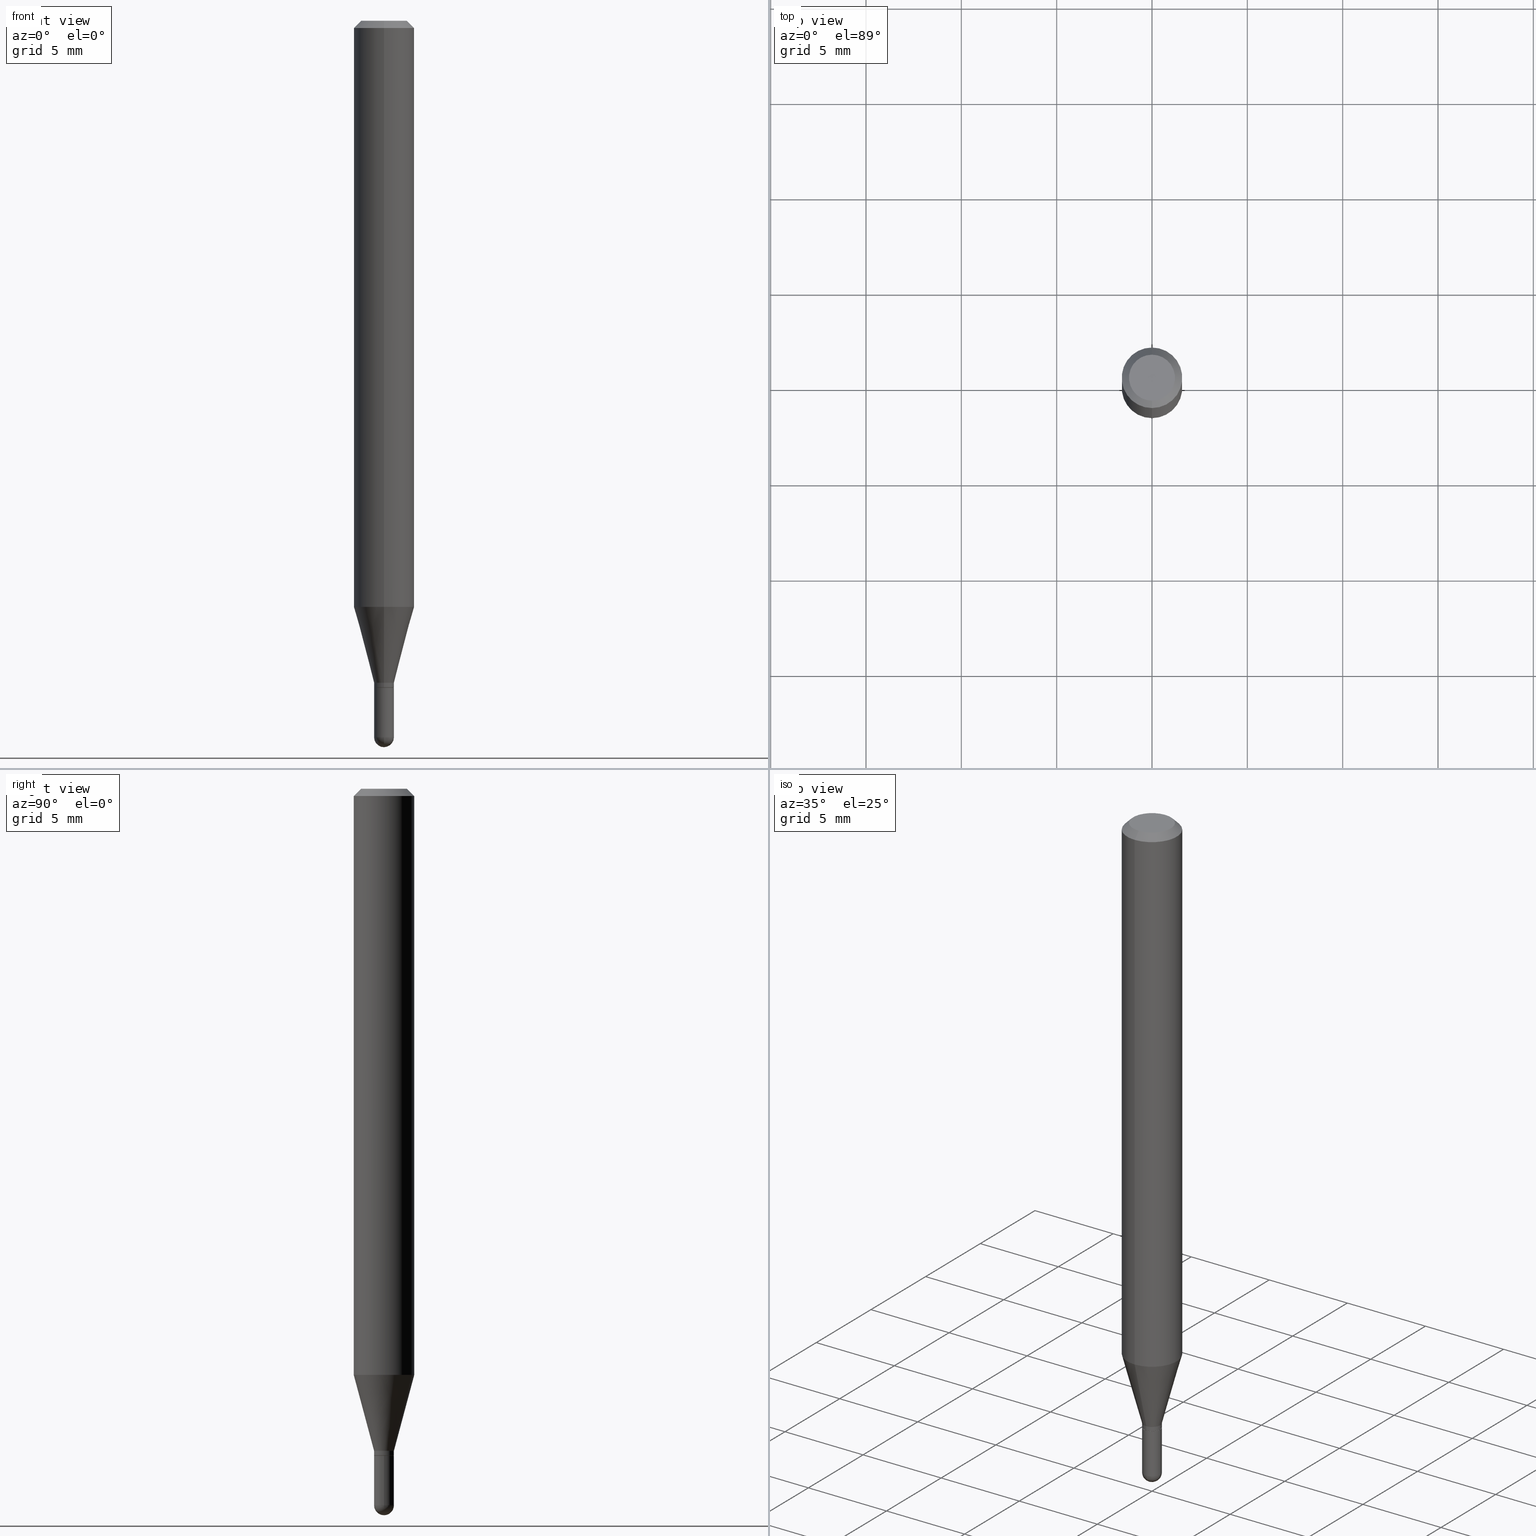
[diagram: canonical four-view strip — front | top / right | iso, engineering-drawing reading convention]
A machine part, canonical four-view strip (front | top / right | iso — engineering-drawing reading convention). The complete STEP part file that produces these views, byte-faithful:
ISO-10303-21;
HEADER;
FILE_DESCRIPTION (( 'STEP AP203' ),
    '1' );
FILE_NAME ('00847.STEP',
    '2024-03-07T18:28:49',
    ( '' ),
    ( '' ),
    'SwSTEP 2.0',
    'SolidWorks 2023',
    '' );
FILE_SCHEMA (( 'CONFIG_CONTROL_DESIGN' ));
ENDSEC;

DATA;
#1 = DIRECTION ( 'NONE',  ( -2.445286183513924545E-29, 3.491742864902558020E-15, 1.000000000000000000 ) ) ;
#2 = DIRECTION ( 'NONE',  ( 2.445286183513924545E-29, -3.491742864902558020E-15, -1.000000000000000000 ) ) ;
#3 = PERSON_AND_ORGANIZATION_ROLE ( 'design_owner' ) ;
#4 = MECHANICAL_CONTEXT ( 'NONE', #492, 'mechanical' ) ;
#5 = AXIS2_PLACEMENT_3D ( 'NONE', #204, #49, #90 ) ;
#6 = ADVANCED_FACE ( 'NONE', ( #205 ), #20, .T. ) ;
#7 = APPLICATION_PROTOCOL_DEFINITION ( 'international standard', 'config_control_design', 1994, #485 ) ;
#8 = LINE ( 'NONE', #9, #242 ) ;
#9 = CARTESIAN_POINT ( 'NONE',  ( -4.364351673553916201E-16, -0.06250000000000000000, 2.182339290564098763E-16 ) ) ;
#10 = UNCERTAINTY_MEASURE_WITH_UNIT (LENGTH_MEASURE( 1.000000000000000082E-05 ), #201, 'distance_accuracy_value', 'NONE');
#11 = EDGE_CURVE ( 'NONE', #472, #428, #304, .T. ) ;
#12 = CONICAL_SURFACE ( 'NONE', #153, 0.02000000000000000042, 0.7853981633974739252 ) ;
#13 = AXIS2_PLACEMENT_3D ( 'NONE', #247, #83, #241 ) ;
#14 = ORIENTED_EDGE ( 'NONE', *, *, #502, .T. ) ;
#15 = CARTESIAN_POINT ( 'NONE',  ( 4.440892098500920012E-16, 0.06249999999999574646, -1.210253866082108276 ) ) ;
#16 = APPROVAL ( #222, 'UNSPECIFIED' ) ;
#17 = EDGE_LOOP ( 'NONE', ( #93, #417, #248, #25, #464 ) ) ;
#18 = PRODUCT ( '00847', '00847', '', ( #4 ) ) ;
#19 = VERTEX_POINT ( 'NONE', #252 ) ;
#20 = CONICAL_SURFACE ( 'NONE', #258, 0.02049999999999993494, 0.2617993877991507401 ) ;
#21 = EDGE_CURVE ( 'NONE', #67, #495, #409, .T. ) ;
#22 = AXIS2_PLACEMENT_3D ( 'NONE', #178, #349, #32 ) ;
#23 = CARTESIAN_POINT ( 'NONE',  ( -4.287811248607203282E-16, -0.06250000000000005551, -0.01499999999999979128 ) ) ;
#24 = EDGE_CURVE ( 'NONE', #343, #413, #56, .T. ) ;
#25 = ORIENTED_EDGE ( 'NONE', *, *, #21, .F. ) ;
#26 = DIRECTION ( 'NONE',  ( -4.851104656540964275E-15, -0.7071067811865500152, -0.7071067811865450192 ) ) ;
#27 = ORIENTED_EDGE ( 'NONE', *, *, #399, .F. ) ;
#28 = LINE ( 'NONE', #182, #493 ) ;
#29 = EDGE_CURVE ( 'NONE', #19, #289, #8, .T. ) ;
#30 = ORIENTED_EDGE ( 'NONE', *, *, #385, .F. ) ;
#31 = CARTESIAN_POINT ( 'NONE',  ( 1.431507348926021194E-16, 0.02049999999999519568, -1.377000000000000002 ) ) ;
#32 = DIRECTION ( 'NONE',  ( -6.982962677686266711E-15, -1.000000000000000000, 3.491742864902558415E-15 ) ) ;
#33 = CARTESIAN_POINT ( 'NONE',  ( 0.000000000000000000, 0.000000000000000000, 0.000000000000000000 ) ) ;
#34 = EDGE_LOOP ( 'NONE', ( #71, #173, #269, #132 ) ) ;
#35 = APPROVAL_ROLE ( '' ) ;
#36 = DIRECTION ( 'NONE',  ( -2.445286183513924545E-29, 3.491742864902558020E-15, 1.000000000000000000 ) ) ;
#37 = VECTOR ( 'NONE', #494, 39.37007874015748143 ) ;
#38 = AXIS2_PLACEMENT_3D ( 'NONE', #75, #400, #39 ) ;
#39 = DIRECTION ( 'NONE',  ( -6.982962677686266711E-15, -1.000000000000000000, 3.491742864902558415E-15 ) ) ;
#40 = ADVANCED_FACE ( 'NONE', ( #461 ), #389, .T. ) ;
#41 = COORDINATED_UNIVERSAL_TIME_OFFSET ( 5, 0, .BEHIND. ) ;
#42 = AXIS2_PLACEMENT_3D ( 'NONE', #324, #475, #79 ) ;
#43 = CC_DESIGN_SECURITY_CLASSIFICATION ( #319, ( #251 ) ) ;
#44 = DIRECTION ( 'NONE',  ( -6.982962677686265922E-15, -1.000000000000000000, 4.370956789862821150E-15 ) ) ;
#45 = EDGE_CURVE ( 'NONE', #331, #289, #215, .T. ) ;
#46 = ORIENTED_EDGE ( 'NONE', *, *, #334, .F. ) ;
#47 =( NAMED_UNIT ( * ) SI_UNIT ( $, .STERADIAN. ) SOLID_ANGLE_UNIT ( ) );
#48 = EDGE_LOOP ( 'NONE', ( #266, #433 ) ) ;
#49 = DIRECTION ( 'NONE',  ( -2.445286183513924545E-29, 3.491742864902558020E-15, 1.000000000000000000 ) ) ;
#50 = CC_DESIGN_PERSON_AND_ORGANIZATION_ASSIGNMENT ( #113, #149, ( #251 ) ) ;
#51 = DIRECTION ( 'NONE',  ( 6.982962677686265922E-15, 1.000000000000000000, -3.483106191921935554E-15 ) ) ;
#52 = CONICAL_SURFACE ( 'NONE', #511, 0.06250000000000000000, 0.7853981633974483900 ) ;
#53 = CC_DESIGN_APPROVAL ( #184, ( #408 ) ) ;
#54 = ORIENTED_EDGE ( 'NONE', *, *, #29, .F. ) ;
#55 = CARTESIAN_POINT ( 'NONE',  ( 0.000000000000000000, 0.000000000000000000, 0.000000000000000000 ) ) ;
#56 = LINE ( 'NONE', #207, #151 ) ;
#57 = EDGE_CURVE ( 'NONE', #426, #137, #230, .T. ) ;
#58 = DIRECTION ( 'NONE',  ( -2.445286183513924545E-29, 3.491742864902558020E-15, 1.000000000000000000 ) ) ;
#59 = ORIENTED_EDGE ( 'NONE', *, *, #297, .F. ) ;
#60 = CIRCLE ( 'NONE', #22, 0.04749999999999999362 ) ;
#61 = DIRECTION ( 'NONE',  ( 1.000000000000000000, -6.982962677686264344E-15, 0.000000000000000000 ) ) ;
#62 = APPROVAL_PERSON_ORGANIZATION ( #65, #16, #35 ) ;
#63 = DIRECTION ( 'NONE',  ( -2.445286183513924545E-29, 3.491742864902558020E-15, 1.000000000000000000 ) ) ;
#64 = ADVANCED_FACE ( 'NONE', ( #221 ), #102, .T. ) ;
#65 = PERSON_AND_ORGANIZATION ( #337, #212 ) ;
#66 = CARTESIAN_POINT ( 'NONE',  ( -1.431507348925679518E-16, -0.02049999999999992800, 7.158072873050219437E-17 ) ) ;
#67 = VERTEX_POINT ( 'NONE', #508 ) ;
#68 = CARTESIAN_POINT ( 'NONE',  ( 1.421085471520536653E-16, 0.01999999999999519523, -1.377000000000000002 ) ) ;
#69 = DIRECTION ( 'NONE',  ( -6.982962677686265922E-15, -1.000000000000000000, 3.491742864902558020E-15 ) ) ;
#70 = CIRCLE ( 'NONE', #13, 0.02050000000000000086 ) ;
#71 = ORIENTED_EDGE ( 'NONE', *, *, #183, .F. ) ;
#72 = DATE_AND_TIME ( #186, #181 ) ;
#73 = ORIENTED_EDGE ( 'NONE', *, *, #357, .F. ) ;
#74 = FACE_OUTER_BOUND ( 'NONE', #34, .T. ) ;
#75 = CARTESIAN_POINT ( 'NONE',  ( 2.163564054158609537E-46, -3.089458158231546394E-32, -8.847897104009008911E-18 ) ) ;
#76 = AXIS2_PLACEMENT_3D ( 'NONE', #468, #299, #111 ) ;
#77 = APPROVAL_PERSON_ORGANIZATION ( #199, #184, #122 ) ;
#78 = ADVANCED_FACE ( 'NONE', ( #271 ), #380, .F. ) ;
#79 = DIRECTION ( 'NONE',  ( -6.982962677686265922E-15, -1.000000000000000000, 0.000000000000000000 ) ) ;
#80 = APPROVAL_DATE_TIME ( #328, #184 ) ;
#81 = PERSON_AND_ORGANIZATION ( #337, #212 ) ;
#82 = DIRECTION ( 'NONE',  ( -6.982962677686265133E-15, -1.000000000000000000, 0.000000000000000000 ) ) ;
#83 = DIRECTION ( 'NONE',  ( -2.445468806185136597E-29, 3.491481338843145583E-15, 1.000000000000000000 ) ) ;
#84 = VECTOR ( 'NONE', #427, 39.37007874015748143 ) ;
#85 = CARTESIAN_POINT ( 'NONE',  ( 3.616318007858092069E-29, -5.168157166756686411E-15, -1.479500000000000259 ) ) ;
#86 = ORIENTED_EDGE ( 'NONE', *, *, #98, .F. ) ;
#87 = ORIENTED_EDGE ( 'NONE', *, *, #11, .T. ) ;
#88 = DIRECTION ( 'NONE',  ( -2.445468806185136597E-29, 3.491481338843145583E-15, 1.000000000000000000 ) ) ;
#89 = ORIENTED_EDGE ( 'NONE', *, *, #91, .F. ) ;
#90 = DIRECTION ( 'NONE',  ( -6.982962677686265922E-15, -1.000000000000000000, 3.491742864902558020E-15 ) ) ;
#91 = EDGE_CURVE ( 'NONE', #372, #289, #422, .T. ) ;
#92 = CC_DESIGN_DATE_AND_TIME_ASSIGNMENT ( #282, #440, ( #408 ) ) ;
#93 = ORIENTED_EDGE ( 'NONE', *, *, #339, .T. ) ;
#94 = DIRECTION ( 'NONE',  ( 1.000000000000000000, -6.982962677686264344E-15, 0.000000000000000000 ) ) ;
#95 = DIRECTION ( 'NONE',  ( -2.445286183513924265E-29, 3.491742864902558020E-15, 1.000000000000000000 ) ) ;
#96 = EDGE_LOOP ( 'NONE', ( #285, #254 ) ) ;
#97 = DIRECTION ( 'NONE',  ( 1.000000000000000000, -6.982962677686261977E-15, 0.000000000000000000 ) ) ;
#98 = EDGE_CURVE ( 'NONE', #187, #137, #498, .T. ) ;
#99 = AXIS2_PLACEMENT_3D ( 'NONE', #267, #216, #69 ) ;
#100 = VERTEX_POINT ( 'NONE', #504 ) ;
#101 = CIRCLE ( 'NONE', #462, 0.02049999999999992453 ) ;
#102 = CYLINDRICAL_SURFACE ( 'NONE', #469, 0.02049999999999992800 ) ;
#103 = DIRECTION ( 'NONE',  ( 6.982962677686265922E-15, 1.000000000000000000, 0.000000000000000000 ) ) ;
#104 = ORIENTED_EDGE ( 'NONE', *, *, #167, .F. ) ;
#105 = CARTESIAN_POINT ( 'NONE',  ( 3.618071098750910124E-29, -5.165646640818434953E-15, -1.479500000000000259 ) ) ;
#106 = DATE_AND_TIME ( #395, #406 ) ;
#107 = ORIENTED_EDGE ( 'NONE', *, *, #29, .T. ) ;
#108 = CARTESIAN_POINT ( 'NONE',  ( 2.959417057274890367E-29, -4.225895301612936912E-15, -1.210253866082107832 ) ) ;
#109 = ORIENTED_EDGE ( 'NONE', *, *, #200, .T. ) ;
#110 = CLOSED_SHELL ( 'NONE', ( #435, #377, #280, #40, #6, #346, #442, #392, #244, #265, #227, #64 ) ) ;
#111 = DIRECTION ( 'NONE',  ( 1.000000000000000000, -6.982962677686264344E-15, 0.000000000000000000 ) ) ;
#112 = AXIS2_PLACEMENT_3D ( 'NONE', #403, #2, #477 ) ;
#113 = PERSON_AND_ORGANIZATION ( #337, #212 ) ;
#114 = EDGE_CURVE ( 'NONE', #426, #19, #218, .T. ) ;
#115 = CLOSED_SHELL ( 'NONE', ( #450, #288, #78, #237, #256 ) ) ;
#116 = ORIENTED_EDGE ( 'NONE', *, *, #45, .T. ) ;
#117 = DIRECTION ( 'NONE',  ( -6.982962677686265922E-15, -1.000000000000000000, 0.000000000000000000 ) ) ;
#118 = PERSON_AND_ORGANIZATION ( #337, #212 ) ;
#119 = CARTESIAN_POINT ( 'NONE',  ( 3.616318007858092069E-29, -5.168157166756686411E-15, -1.479500000000000259 ) ) ;
#120 = LINE ( 'NONE', #480, #501 ) ;
#121 = AXIS2_PLACEMENT_3D ( 'NONE', #465, #264, #348 ) ;
#122 = APPROVAL_ROLE ( '' ) ;
#123 = DIRECTION ( 'NONE',  ( 2.445286183513924545E-29, -3.491742864902558020E-15, -1.000000000000000000 ) ) ;
#124 = PLANE ( 'NONE',  #405 ) ;
#125 = CARTESIAN_POINT ( 'NONE',  ( -0.02050000000000000086, -4.841046961371903070E-15, -1.377000000000000002 ) ) ;
#126 = DIRECTION ( 'NONE',  ( -2.445286183513924545E-29, 3.491742864902558020E-15, 1.000000000000000000 ) ) ;
#127 = DIRECTION ( 'NONE',  ( 1.000000000000000000, -6.982962677686267499E-15, 4.876176775795935232E-29 ) ) ;
#128 = VERTEX_POINT ( 'NONE', #310 ) ;
#129 = CIRCLE ( 'NONE', #270, 0.06250000000000000000 ) ;
#130 = ORIENTED_EDGE ( 'NONE', *, *, #189, .F. ) ;
#131 = CARTESIAN_POINT ( 'NONE',  ( -1.431507348925345485E-16, -0.02050000000000470543, -1.367000000000000215 ) ) ;
#132 = ORIENTED_EDGE ( 'NONE', *, *, #306, .F. ) ;
#133 = EDGE_CURVE ( 'NONE', #203, #128, #443, .T. ) ;
#134 = ORIENTED_EDGE ( 'NONE', *, *, #183, .T. ) ;
#135 = ORIENTED_EDGE ( 'NONE', *, *, #189, .T. ) ;
#136 = DIRECTION ( 'NONE',  ( -4.937700262164674260E-15, -0.7071067811865632269, 0.7071067811865319186 ) ) ;
#137 = VERTEX_POINT ( 'NONE', #384 ) ;
#138 = CARTESIAN_POINT ( 'NONE',  ( 1.456612608308531340E-16, 0.02049999999999504996, -1.376500000000000279 ) ) ;
#139 = FACE_OUTER_BOUND ( 'NONE', #486, .T. ) ;
#140 = EDGE_CURVE ( 'NONE', #343, #428, #398, .T. ) ;
#141 = DIRECTION ( 'NONE',  ( -2.445286183513924825E-29, 3.491742864902558020E-15, 1.000000000000000000 ) ) ;
#142 = DIRECTION ( 'NONE',  ( -6.982962677686265133E-15, -1.000000000000000000, 0.000000000000000000 ) ) ;
#143 = CONICAL_SURFACE ( 'NONE', #112, 0.06250000000000000000, 0.7853981633974483900 ) ;
#144 = DIRECTION ( 'NONE',  ( -2.445286183513924825E-29, 3.491742864902558020E-15, 1.000000000000000000 ) ) ;
#145 = DIRECTION ( 'NONE',  ( -2.445286183513924545E-29, 3.491742864902558020E-15, 1.000000000000000000 ) ) ;
#146 = EDGE_LOOP ( 'NONE', ( #30, #509, #467, #104 ) ) ;
#147 = CARTESIAN_POINT ( 'NONE',  ( 1.456612608308200019E-16, 0.02049999999999992800, -7.158072873050219437E-17 ) ) ;
#148 = EDGE_CURVE ( 'NONE', #446, #331, #28, .T. ) ;
#149 = PERSON_AND_ORGANIZATION_ROLE ( 'creator' ) ;
#150 = ORIENTED_EDGE ( 'NONE', *, *, #11, .F. ) ;
#151 = VECTOR ( 'NONE', #368, 39.37007874015748143 ) ;
#152 = FACE_OUTER_BOUND ( 'NONE', #274, .T. ) ;
#153 = AXIS2_PLACEMENT_3D ( 'NONE', #474, #1, #117 ) ;
#154 = AXIS2_PLACEMENT_3D ( 'NONE', #255, #272, #329 ) ;
#155 = CARTESIAN_POINT ( 'NONE',  ( 3.365936431606917965E-29, -4.806384053538371570E-15, -1.376500000000000279 ) ) ;
#156 = CARTESIAN_POINT ( 'NONE',  ( 3.342706212863535616E-29, -4.773212496321797638E-15, -1.367000000000000215 ) ) ;
#157 = EDGE_CURVE ( 'NONE', #289, #331, #305, .T. ) ;
#158 = DIRECTION ( 'NONE',  ( 0.000000000000000000, 0.000000000000000000, 1.000000000000000000 ) ) ;
#159 = CARTESIAN_POINT ( 'NONE',  ( -0.02049999999999999392, -4.841046961371903070E-15, -1.479500000000000259 ) ) ;
#160 = AXIS2_PLACEMENT_3D ( 'NONE', #246, #290, #294 ) ;
#161 = COORDINATED_UNIVERSAL_TIME_OFFSET ( 5, 0, .BEHIND. ) ;
#162 = CYLINDRICAL_SURFACE ( 'NONE', #374, 0.02049999999999999739 ) ;
#163 = EDGE_LOOP ( 'NONE', ( #220, #87, #313, #330 ) ) ;
#164 = ORIENTED_EDGE ( 'NONE', *, *, #502, .F. ) ;
#165 = ORIENTED_EDGE ( 'NONE', *, *, #466, .F. ) ;
#166 = FACE_OUTER_BOUND ( 'NONE', #17, .T. ) ;
#167 = EDGE_CURVE ( 'NONE', #293, #331, #463, .T. ) ;
#168 = EDGE_LOOP ( 'NONE', ( #169, #301, #164, #335 ) ) ;
#169 = ORIENTED_EDGE ( 'NONE', *, *, #57, .T. ) ;
#170 = VECTOR ( 'NONE', #26, 39.37007874015748143 ) ;
#171 = CIRCLE ( 'NONE', #188, 0.02049999999999993494 ) ;
#172 = LOCAL_TIME ( 13, 28, 49.00000000000000000, #396 ) ;
#173 = ORIENTED_EDGE ( 'NONE', *, *, #416, .T. ) ;
#174 = CARTESIAN_POINT ( 'NONE',  ( 3.667929275270889498E-31, -5.237614297353840235E-17, -0.01500000000000000812 ) ) ;
#175 = ORIENTED_EDGE ( 'NONE', *, *, #157, .F. ) ;
#176 = CARTESIAN_POINT ( 'NONE',  ( 4.364351673553919652E-16, 0.06249999999999995143, -0.01500000000000022669 ) ) ;
#177 = DIRECTION ( 'NONE',  ( -6.982962677686265133E-15, -1.000000000000000000, 0.000000000000000000 ) ) ;
#178 = CARTESIAN_POINT ( 'NONE',  ( 2.163564054158609537E-46, -3.089458158231546394E-32, -8.847897104009008911E-18 ) ) ;
#179 = AXIS2_PLACEMENT_3D ( 'NONE', #312, #229, #191 ) ;
#180 = ORIENTED_EDGE ( 'NONE', *, *, #133, .T. ) ;
#181 = LOCAL_TIME ( 13, 28, 49.00000000000000000, #432 ) ;
#182 = CARTESIAN_POINT ( 'NONE',  ( 4.440892098500625669E-16, 0.06250000000000000000, -2.182339290564098763E-16 ) ) ;
#183 = EDGE_CURVE ( 'NONE', #128, #187, #185, .T. ) ;
#184 = APPROVAL ( #478, 'UNSPECIFIED' ) ;
#185 = LINE ( 'NONE', #68, #268 ) ;
#186 = CALENDAR_DATE ( 2024, 7, 3 ) ;
#187 = VERTEX_POINT ( 'NONE', #138 ) ;
#188 = AXIS2_PLACEMENT_3D ( 'NONE', #156, #367, #82 ) ;
#189 = EDGE_CURVE ( 'NONE', #446, #19, #211, .T. ) ;
#190 = CIRCLE ( 'NONE', #154, 0.02049999999999997657 ) ;
#191 = DIRECTION ( 'NONE',  ( 1.000000000000000000, -6.982962677686264344E-15, 0.000000000000000000 ) ) ;
#192 = CARTESIAN_POINT ( 'NONE',  ( 1.431507348926045106E-16, 0.02049999999999482098, -1.479500000000000259 ) ) ;
#193 = DIRECTION ( 'NONE',  ( 6.982962677686265922E-15, 1.000000000000000000, 0.000000000000000000 ) ) ;
#194 = FACE_OUTER_BOUND ( 'NONE', #388, .T. ) ;
#195 = CARTESIAN_POINT ( 'NONE',  ( 3.667929275270889498E-31, -5.237614297353840235E-17, -0.01500000000000000812 ) ) ;
#196 = CC_DESIGN_DATE_AND_TIME_ASSIGNMENT ( #72, #276, ( #319 ) ) ;
#197 = DIRECTION ( 'NONE',  ( 1.000000000000000000, 0.000000000000000000, 0.000000000000000000 ) ) ;
#198 = AXIS2_PLACEMENT_3D ( 'NONE', #55, #414, #336 ) ;
#199 = PERSON_AND_ORGANIZATION ( #337, #212 ) ;
#200 = EDGE_CURVE ( 'NONE', #428, #67, #412, .T. ) ;
#201 =( CONVERSION_BASED_UNIT ( 'INCH', #287 ) LENGTH_UNIT ( ) NAMED_UNIT ( #419 ) );
#202 = ORIENTED_EDGE ( 'NONE', *, *, #24, .F. ) ;
#203 = VERTEX_POINT ( 'NONE', #431 ) ;
#204 = CARTESIAN_POINT ( 'NONE',  ( 0.000000000000000000, 0.000000000000000000, 0.000000000000000000 ) ) ;
#205 = FACE_OUTER_BOUND ( 'NONE', #168, .T. ) ;
#206 = CARTESIAN_POINT ( 'NONE',  ( 3.618071098750910124E-29, -5.165646640818434953E-15, -1.479500000000000259 ) ) ;
#207 = CARTESIAN_POINT ( 'NONE',  ( -0.02049999999999999739, 1.456612608308205196E-16, -1.008381693502255444E-30 ) ) ;
#208 = CARTESIAN_POINT ( 'NONE',  ( 3.667326663831296428E-29, -5.238477271233845089E-15, -1.500000000000000222 ) ) ;
#209 = PRODUCT_DEFINITION_SHAPE ( 'NONE', 'NONE',  #408 ) ;
#210 = CARTESIAN_POINT ( 'NONE',  ( 3.367410546116933466E-29, -4.807769803587011733E-15, -1.377000000000000002 ) ) ;
#211 = CIRCLE ( 'NONE', #360, 0.06250000000000000000 ) ;
#212 = ORGANIZATION ( 'UNSPECIFIED', 'UNSPECIFIED', '' ) ;
#213 = PLANE ( 'NONE',  #239 ) ;
#214 = ORIENTED_EDGE ( 'NONE', *, *, #200, .F. ) ;
#215 = CIRCLE ( 'NONE', #382, 0.06250000000000000000 ) ;
#216 = DIRECTION ( 'NONE',  ( -2.445286183513924545E-29, 3.491742864902558020E-15, 1.000000000000000000 ) ) ;
#217 = ORIENTED_EDGE ( 'NONE', *, *, #57, .F. ) ;
#218 = LINE ( 'NONE', #302, #284 ) ;
#219 = APPROVAL_DATE_TIME ( #510, #16 ) ;
#220 = ORIENTED_EDGE ( 'NONE', *, *, #473, .F. ) ;
#221 = FACE_OUTER_BOUND ( 'NONE', #298, .T. ) ;
#222 = APPROVAL_STATUS ( 'not_yet_approved' ) ;
#223 = EDGE_CURVE ( 'NONE', #495, #413, #470, .T. ) ;
#224 = AXIS2_PLACEMENT_3D ( 'NONE', #174, #386, #496 ) ;
#225 = DIRECTION ( 'NONE',  ( -2.445286183513924545E-29, 3.491742864902558020E-15, 1.000000000000000000 ) ) ;
#226 = DIRECTION ( 'NONE',  ( 6.982962677686265922E-15, 1.000000000000000000, -3.491742864902558020E-15 ) ) ;
#227 = ADVANCED_FACE ( 'NONE', ( #74 ), #12, .T. ) ;
#228 = APPROVAL_DATE_TIME ( #106, #322 ) ;
#229 = DIRECTION ( 'NONE',  ( -2.445468806185136597E-29, 3.491481338843145583E-15, 1.000000000000000000 ) ) ;
#230 = CIRCLE ( 'NONE', #317, 0.02049999999999993494 ) ;
#231 = CIRCLE ( 'NONE', #179, 0.02049999999999999392 ) ;
#232 = FACE_OUTER_BOUND ( 'NONE', #96, .T. ) ;
#233 = DIRECTION ( 'NONE',  ( 1.839019923739603471E-15, 0.2588190451025254024, 0.9659258262890670910 ) ) ;
#234 =( LENGTH_UNIT ( ) NAMED_UNIT ( * ) SI_UNIT ( $, .METRE. ) );
#235 = CARTESIAN_POINT ( 'NONE',  ( 3.316907271900976096E-16, 0.04749999999999999362, -1.702817346348759876E-16 ) ) ;
#236 = APPROVAL_STATUS ( 'not_yet_approved' ) ;
#237 = ADVANCED_FACE ( 'NONE', ( #323 ), #482, .T. ) ;
#238 = VECTOR ( 'NONE', #141, 39.37007874015748143 ) ;
#239 = AXIS2_PLACEMENT_3D ( 'NONE', #456, #95, #421 ) ;
#240 = CC_DESIGN_APPROVAL ( #322, ( #251 ) ) ;
#241 = DIRECTION ( 'NONE',  ( 1.000000000000000000, -6.982962677686261977E-15, 0.000000000000000000 ) ) ;
#242 = VECTOR ( 'NONE', #144, 39.37007874015748143 ) ;
#243 = DIRECTION ( 'NONE',  ( -7.105427357601000281E-15, -1.000000000000000000, 0.000000000000000000 ) ) ;
#244 = ADVANCED_FACE ( 'NONE', ( #232 ), #124, .F. ) ;
#245 = CARTESIAN_POINT ( 'NONE',  ( 3.342706212863535616E-29, -4.773212496321797638E-15, -1.367000000000000215 ) ) ;
#246 = CARTESIAN_POINT ( 'NONE',  ( 0.000000000000000000, 0.000000000000000000, 0.000000000000000000 ) ) ;
#247 = CARTESIAN_POINT ( 'NONE',  ( 3.367410546116933466E-29, -4.807769803587011733E-15, -1.377000000000000002 ) ) ;
#248 = ORIENTED_EDGE ( 'NONE', *, *, #223, .F. ) ;
#249 = CARTESIAN_POINT ( 'NONE',  ( -1.456612608307842073E-16, -0.02050000000000514952, -1.479500000000000259 ) ) ;
#250 = CONICAL_SURFACE ( 'NONE', #487, 0.02049999999999993494, 0.2617993877991507401 ) ;
#251 = PRODUCT_DEFINITION_FORMATION_WITH_SPECIFIED_SOURCE ( 'ANY', '', #18, .NOT_KNOWN. ) ;
#252 = CARTESIAN_POINT ( 'NONE',  ( -4.364351673553621857E-16, -0.06250000000000424660, -1.210253866082107610 ) ) ;
#253 = FACE_OUTER_BOUND ( 'NONE', #356, .T. ) ;
#254 = ORIENTED_EDGE ( 'NONE', *, *, #385, .T. ) ;
#255 = CARTESIAN_POINT ( 'NONE',  ( 3.616318007858092069E-29, -5.168157166756686411E-15, -1.479500000000000259 ) ) ;
#256 = ADVANCED_FACE ( 'NONE', ( #152 ), #162, .T. ) ;
#257 = DIRECTION ( 'NONE',  ( -6.982962677686265922E-15, -1.000000000000000000, 3.491742864902558415E-15 ) ) ;
#258 = AXIS2_PLACEMENT_3D ( 'NONE', #245, #58, #338 ) ;
#259 = CIRCLE ( 'NONE', #38, 0.04749999999999999362 ) ;
#260 = AXIS2_PLACEMENT_3D ( 'NONE', #206, #376, #94 ) ;
#261 = VERTEX_POINT ( 'NONE', #192 ) ;
#262 = CARTESIAN_POINT ( 'NONE',  ( 3.667929275270889498E-31, -5.237614297353840235E-17, -0.01500000000000000812 ) ) ;
#263 = DIRECTION ( 'NONE',  ( -6.982962677686265133E-15, -1.000000000000000000, 0.000000000000000000 ) ) ;
#264 = DIRECTION ( 'NONE',  ( -2.445286183513924545E-29, 3.491742864902558020E-15, 1.000000000000000000 ) ) ;
#265 = ADVANCED_FACE ( 'NONE', ( #253 ), #213, .F. ) ;
#266 = ORIENTED_EDGE ( 'NONE', *, *, #223, .T. ) ;
#267 = CARTESIAN_POINT ( 'NONE',  ( 0.000000000000000000, 0.000000000000000000, 0.000000000000000000 ) ) ;
#268 = VECTOR ( 'NONE', #354, 39.37007874015748143 ) ;
#269 = ORIENTED_EDGE ( 'NONE', *, *, #430, .T. ) ;
#270 = AXIS2_PLACEMENT_3D ( 'NONE', #449, #126, #44 ) ;
#271 = FACE_OUTER_BOUND ( 'NONE', #48, .T. ) ;
#272 = DIRECTION ( 'NONE',  ( 1.000000000000000000, -6.982962677686265922E-15, 4.883557194083112340E-29 ) ) ;
#273 = PERSON_AND_ORGANIZATION ( #337, #212 ) ;
#274 = EDGE_LOOP ( 'NONE', ( #202, #490, #109, #454, #503 ) ) ;
#275 = SPHERICAL_SURFACE ( 'NONE', #479, 0.02049999999999997657 ) ;
#276 = DATE_TIME_ROLE ( 'classification_date' ) ;
#277 = DIRECTION ( 'NONE',  ( -1.000000000000000000, 6.982962677686265922E-15, -4.883557194083112340E-29 ) ) ;
#278 = CIRCLE ( 'NONE', #332, 0.02000000000000000042 ) ;
#279 = COORDINATED_UNIVERSAL_TIME_OFFSET ( 5, 0, .BEHIND. ) ;
#280 = ADVANCED_FACE ( 'NONE', ( #300 ), #52, .T. ) ;
#281 = CARTESIAN_POINT ( 'NONE',  ( 3.367159074698674783E-29, -4.808129924970821916E-15, -1.377000000000000002 ) ) ;
#282 = DATE_AND_TIME ( #481, #307 ) ;
#283 =( NAMED_UNIT ( * ) PLANE_ANGLE_UNIT ( ) SI_UNIT ( $, .RADIAN. ) );
#284 = VECTOR ( 'NONE', #500, 39.37007874015748854 ) ;
#285 = ORIENTED_EDGE ( 'NONE', *, *, #334, .T. ) ;
#286 = AXIS2_PLACEMENT_3D ( 'NONE', #105, #308, #61 ) ;
#287 = LENGTH_MEASURE_WITH_UNIT ( LENGTH_MEASURE( 0.02539999999999999897 ), #234 );
#288 = ADVANCED_FACE ( 'NONE', ( #355 ), #275, .T. ) ;
#289 = VERTEX_POINT ( 'NONE', #434 ) ;
#290 = DIRECTION ( 'NONE',  ( -2.445286183513924545E-29, 3.491742864902558020E-15, 1.000000000000000000 ) ) ;
#291 = ADVANCED_BREP_SHAPE_REPRESENTATION ( '00847', ( #315, #484, #333 ), #445 ) ;
#292 = ORIENTED_EDGE ( 'NONE', *, *, #148, .T. ) ;
#293 = VERTEX_POINT ( 'NONE', #345 ) ;
#294 = DIRECTION ( 'NONE',  ( -6.982962677686265922E-15, -1.000000000000000000, 3.491742864902558415E-15 ) ) ;
#295 = CIRCLE ( 'NONE', #260, 0.02049999999999999392 ) ;
#296 = ORIENTED_EDGE ( 'NONE', *, *, #114, .T. ) ;
#297 = EDGE_CURVE ( 'NONE', #100, #187, #350, .T. ) ;
#298 = EDGE_LOOP ( 'NONE', ( #86, #318, #347, #73 ) ) ;
#299 = DIRECTION ( 'NONE',  ( -2.445468806185136597E-29, 3.491481338843145583E-15, 1.000000000000000000 ) ) ;
#300 = FACE_OUTER_BOUND ( 'NONE', #146, .T. ) ;
#301 = ORIENTED_EDGE ( 'NONE', *, *, #399, .T. ) ;
#302 = CARTESIAN_POINT ( 'NONE',  ( -1.431507348925345485E-16, -0.02050000000000470543, -1.367000000000000215 ) ) ;
#303 = DIRECTION ( 'NONE',  ( -2.445286183513924545E-29, 3.491742864902558020E-15, 1.000000000000000000 ) ) ;
#304 = CIRCLE ( 'NONE', #491, 0.02049999999999997657 ) ;
#305 = CIRCLE ( 'NONE', #224, 0.06250000000000000000 ) ;
#306 = EDGE_CURVE ( 'NONE', #187, #100, #101, .T. ) ;
#307 = LOCAL_TIME ( 13, 28, 49.00000000000000000, #161 ) ;
#308 = DIRECTION ( 'NONE',  ( -2.445468806185136597E-29, 3.491481338843145583E-15, 1.000000000000000000 ) ) ;
#309 = CARTESIAN_POINT ( 'NONE',  ( 3.365936431606917965E-29, -4.806384053538371570E-15, -1.376500000000000279 ) ) ;
#310 = CARTESIAN_POINT ( 'NONE',  ( 1.438849039914536462E-16, 0.01999999999999519523, -1.377000000000000002 ) ) ;
#311 = CC_DESIGN_PERSON_AND_ORGANIZATION_ASSIGNMENT ( #273, #512, ( #319 ) ) ;
#312 = CARTESIAN_POINT ( 'NONE',  ( 3.618071098750910124E-29, -5.165646640818434953E-15, -1.479500000000000259 ) ) ;
#313 = ORIENTED_EDGE ( 'NONE', *, *, #140, .F. ) ;
#314 = DIRECTION ( 'NONE',  ( -6.982962677686265922E-15, -1.000000000000000000, 4.370956789862821150E-15 ) ) ;
#315 = MANIFOLD_SOLID_BREP ( 'Body-Move/Copy2[1]', #115 ) ;
#316 = PERSON_AND_ORGANIZATION_ROLE ( 'design_supplier' ) ;
#317 = AXIS2_PLACEMENT_3D ( 'NONE', #352, #145, #177 ) ;
#318 = ORIENTED_EDGE ( 'NONE', *, *, #306, .T. ) ;
#319 = SECURITY_CLASSIFICATION ( '', '', #353 ) ;
#320 = CARTESIAN_POINT ( 'NONE',  ( 0.000000000000000000, 0.000000000000000000, 0.000000000000000000 ) ) ;
#321 = DIRECTION ( 'NONE',  ( -1.000000000000000000, 6.982962677686265922E-15, -4.883557194083112340E-29 ) ) ;
#322 = APPROVAL ( #236, 'UNSPECIFIED' ) ;
#323 = FACE_OUTER_BOUND ( 'NONE', #451, .T. ) ;
#324 = CARTESIAN_POINT ( 'NONE',  ( 3.367159074698674783E-29, -4.808129924970821916E-15, -1.377000000000000002 ) ) ;
#325 = EDGE_CURVE ( 'NONE', #100, #426, #425, .T. ) ;
#326 = CONICAL_SURFACE ( 'NONE', #42, 0.02000000000000000042, 0.7853981633974739252 ) ;
#327 = DIRECTION ( 'NONE',  ( -6.982962677686265133E-15, -1.000000000000000000, 0.000000000000000000 ) ) ;
#328 = DATE_AND_TIME ( #438, #471 ) ;
#329 = DIRECTION ( 'NONE',  ( 6.982962677686265133E-15, 1.000000000000000000, 0.000000000000000000 ) ) ;
#330 = ORIENTED_EDGE ( 'NONE', *, *, #339, .F. ) ;
#331 = VERTEX_POINT ( 'NONE', #506 ) ;
#332 = AXIS2_PLACEMENT_3D ( 'NONE', #281, #439, #452 ) ;
#333 = AXIS2_PLACEMENT_3D ( 'NONE', #365, #158, #197 ) ;
#334 = EDGE_CURVE ( 'NONE', #293, #372, #60, .T. ) ;
#335 = ORIENTED_EDGE ( 'NONE', *, *, #114, .F. ) ;
#336 = DIRECTION ( 'NONE',  ( 1.000000000000000000, -6.982962677686267499E-15, 4.876176775795935232E-29 ) ) ;
#337 = PERSON ( 'UNSPECIFIED', 'UNSPECIFIED', 'UNSPECIFIED', ('UNSPECIFIED'), ('UNSPECIFIED'), ('UNSPECIFIED') ) ;
#338 = DIRECTION ( 'NONE',  ( -6.982962677686265133E-15, -1.000000000000000000, 0.000000000000000000 ) ) ;
#339 = EDGE_CURVE ( 'NONE', #261, #343, #231, .T. ) ;
#340 = ORIENTED_EDGE ( 'NONE', *, *, #473, .T. ) ;
#341 = VECTOR ( 'NONE', #387, 39.37007874015748143 ) ;
#342 = DIRECTION ( 'NONE',  ( 2.438088387897960049E-29, -3.491481338843145188E-15, -1.000000000000000000 ) ) ;
#343 = VERTEX_POINT ( 'NONE', #159 ) ;
#344 = DIRECTION ( 'NONE',  ( -1.000000000000000000, 6.982962677686265922E-15, -4.876176775795935793E-29 ) ) ;
#345 = CARTESIAN_POINT ( 'NONE',  ( 3.840629472727447874E-16, 0.04749999999999999362, -1.747056831868805136E-16 ) ) ;
#346 = ADVANCED_FACE ( 'NONE', ( #397 ), #250, .T. ) ;
#347 = ORIENTED_EDGE ( 'NONE', *, *, #325, .T. ) ;
#348 = DIRECTION ( 'NONE',  ( -6.982962677686265922E-15, -1.000000000000000000, 0.000000000000000000 ) ) ;
#349 = DIRECTION ( 'NONE',  ( -2.445286183513924545E-29, 3.491742864902558020E-15, 1.000000000000000000 ) ) ;
#350 = CIRCLE ( 'NONE', #436, 0.02049999999999992453 ) ;
#351 = ORIENTED_EDGE ( 'NONE', *, *, #148, .F. ) ;
#352 = CARTESIAN_POINT ( 'NONE',  ( 3.342706212863535616E-29, -4.773212496321797638E-15, -1.367000000000000215 ) ) ;
#353 = SECURITY_CLASSIFICATION_LEVEL ( 'unclassified' ) ;
#354 = DIRECTION ( 'NONE',  ( 5.024295867788190974E-15, 0.7071067811865681119, 0.7071067811865270336 ) ) ;
#355 = FACE_OUTER_BOUND ( 'NONE', #163, .T. ) ;
#356 = EDGE_LOOP ( 'NONE', ( #457, #460 ) ) ;
#357 = EDGE_CURVE ( 'NONE', #137, #426, #171, .T. ) ;
#358 = CALENDAR_DATE ( 2024, 7, 3 ) ;
#359 = CARTESIAN_POINT ( 'NONE',  ( 3.616318007858092069E-29, -5.168157166756686411E-15, -1.479500000000000259 ) ) ;
#360 = AXIS2_PLACEMENT_3D ( 'NONE', #108, #429, #314 ) ;
#361 = FACE_OUTER_BOUND ( 'NONE', #375, .T. ) ;
#362 = CARTESIAN_POINT ( 'NONE',  ( 3.342706212863535616E-29, -4.773212496321797638E-15, -1.367000000000000215 ) ) ;
#363 = PERSON_AND_ORGANIZATION ( #337, #212 ) ;
#364 = PERSON_AND_ORGANIZATION_ROLE ( 'creator' ) ;
#365 = CARTESIAN_POINT ( 'NONE',  ( 0.000000000000000000, 0.000000000000000000, 0.000000000000000000 ) ) ;
#366 = CARTESIAN_POINT ( 'NONE',  ( 0.02049999999999999739, -1.431507348925684695E-16, 9.996162390381665713E-31 ) ) ;
#367 = DIRECTION ( 'NONE',  ( -2.445286183513924545E-29, 3.491742864902558020E-15, 1.000000000000000000 ) ) ;
#368 = DIRECTION ( 'NONE',  ( -2.445468806185136877E-29, 3.491481338843145188E-15, 1.000000000000000000 ) ) ;
#369 = CARTESIAN_POINT ( 'NONE',  ( -1.396592535536916646E-16, -0.02000000000000480560, -1.377000000000000002 ) ) ;
#370 = APPLICATION_PROTOCOL_DEFINITION ( 'international standard', 'config_control_design', 1994, #492 ) ;
#371 = AXIS2_PLACEMENT_3D ( 'NONE', #31, #342, #344 ) ;
#372 = VERTEX_POINT ( 'NONE', #407 ) ;
#373 = LINE ( 'NONE', #369, #415 ) ;
#374 = AXIS2_PLACEMENT_3D ( 'NONE', #320, #88, #127 ) ;
#375 = EDGE_LOOP ( 'NONE', ( #180, #134, #59, #497 ) ) ;
#376 = DIRECTION ( 'NONE',  ( -2.445468806185136597E-29, 3.491481338843145583E-15, 1.000000000000000000 ) ) ;
#377 = ADVANCED_FACE ( 'NONE', ( #361 ), #326, .T. ) ;
#378 = EDGE_LOOP ( 'NONE', ( #351, #135, #107, #393 ) ) ;
#379 = DESIGN_CONTEXT ( 'detailed design', #485, 'design' ) ;
#380 = PLANE ( 'NONE',  #371 ) ;
#381 = CC_DESIGN_APPROVAL ( #16, ( #319 ) ) ;
#382 = AXIS2_PLACEMENT_3D ( 'NONE', #262, #225, #423 ) ;
#383 = ORIENTED_EDGE ( 'NONE', *, *, #357, .T. ) ;
#384 = CARTESIAN_POINT ( 'NONE',  ( 2.948752353404729004E-16, 0.02049999999999516098, -1.367000000000000215 ) ) ;
#385 = EDGE_CURVE ( 'NONE', #372, #293, #259, .T. ) ;
#386 = DIRECTION ( 'NONE',  ( -2.445286183513924545E-29, 3.491742864902558020E-15, 1.000000000000000000 ) ) ;
#387 = DIRECTION ( 'NONE',  ( -2.445286183513924825E-29, 3.491742864902558020E-15, 1.000000000000000000 ) ) ;
#388 = EDGE_LOOP ( 'NONE', ( #89, #46, #488, #116 ) ) ;
#389 = CYLINDRICAL_SURFACE ( 'NONE', #99, 0.06250000000000000000 ) ;
#390 = AXIS2_PLACEMENT_3D ( 'NONE', #210, #458, #97 ) ;
#391 = DIRECTION ( 'NONE',  ( -2.445286183513924825E-29, 3.491742864902558020E-15, 1.000000000000000000 ) ) ;
#392 = ADVANCED_FACE ( 'NONE', ( #194 ), #143, .T. ) ;
#393 = ORIENTED_EDGE ( 'NONE', *, *, #45, .F. ) ;
#394 = PRODUCT_RELATED_PRODUCT_CATEGORY ( 'detail', '', ( #18 ) ) ;
#395 = CALENDAR_DATE ( 2024, 7, 3 ) ;
#396 = COORDINATED_UNIVERSAL_TIME_OFFSET ( 5, 0, .BEHIND. ) ;
#397 = FACE_OUTER_BOUND ( 'NONE', #410, .T. ) ;
#398 = CIRCLE ( 'NONE', #286, 0.02049999999999999392 ) ;
#399 = EDGE_CURVE ( 'NONE', #137, #446, #120, .T. ) ;
#400 = DIRECTION ( 'NONE',  ( -2.445286183513924545E-29, 3.491742864902558020E-15, 1.000000000000000000 ) ) ;
#401 = PERSON_AND_ORGANIZATION ( #337, #212 ) ;
#402 = DIRECTION ( 'NONE',  ( 2.445286183513924265E-29, -3.491742864902558020E-15, -1.000000000000000000 ) ) ;
#403 = CARTESIAN_POINT ( 'NONE',  ( 3.667929275270889498E-31, -5.237614297353840235E-17, -0.01500000000000000812 ) ) ;
#404 = APPROVAL_ROLE ( '' ) ;
#405 = AXIS2_PLACEMENT_3D ( 'NONE', #235, #402, #226 ) ;
#406 = LOCAL_TIME ( 13, 28, 49.00000000000000000, #41 ) ;
#407 = CARTESIAN_POINT ( 'NONE',  ( -3.773273898774340269E-16, -0.04749999999999999362, 1.570098889788624835E-16 ) ) ;
#408 = PRODUCT_DEFINITION ( 'UNKNOWN', '', #251, #379 ) ;
#409 = LINE ( 'NONE', #366, #37 ) ;
#410 = EDGE_LOOP ( 'NONE', ( #27, #383, #296, #130 ) ) ;
#411 = CYLINDRICAL_SURFACE ( 'NONE', #5, 0.06250000000000000000 ) ;
#412 = CIRCLE ( 'NONE', #76, 0.02049999999999999392 ) ;
#413 = VERTEX_POINT ( 'NONE', #125 ) ;
#414 = DIRECTION ( 'NONE',  ( -2.445468806185136597E-29, 3.491481338843145583E-15, 1.000000000000000000 ) ) ;
#415 = VECTOR ( 'NONE', #136, 39.37007874015748143 ) ;
#416 = EDGE_CURVE ( 'NONE', #128, #203, #278, .T. ) ;
#417 = ORIENTED_EDGE ( 'NONE', *, *, #24, .T. ) ;
#418 = CYLINDRICAL_SURFACE ( 'NONE', #198, 0.02049999999999999739 ) ;
#419 = DIMENSIONAL_EXPONENTS ( 1.000000000000000000, 0.000000000000000000, 0.000000000000000000, 0.000000000000000000, 0.000000000000000000, 0.000000000000000000, 0.000000000000000000 ) ;
#420 = ORIENTED_EDGE ( 'NONE', *, *, #98, .T. ) ;
#421 = DIRECTION ( 'NONE',  ( -6.982962677686265922E-15, -1.000000000000000000, 3.491742864902558020E-15 ) ) ;
#422 = LINE ( 'NONE', #23, #170 ) ;
#423 = DIRECTION ( 'NONE',  ( -6.982962677686265922E-15, -1.000000000000000000, 3.483106191921935554E-15 ) ) ;
#424 = CC_DESIGN_PERSON_AND_ORGANIZATION_ASSIGNMENT ( #363, #3, ( #18 ) ) ;
#425 = LINE ( 'NONE', #66, #341 ) ;
#426 = VERTEX_POINT ( 'NONE', #131 ) ;
#427 = DIRECTION ( 'NONE',  ( 4.937700262164548042E-15, 0.7071067811865451302, -0.7071067811865499042 ) ) ;
#428 = VERTEX_POINT ( 'NONE', #249 ) ;
#429 = DIRECTION ( 'NONE',  ( -2.445286183513924545E-29, 3.491742864902558020E-15, 1.000000000000000000 ) ) ;
#430 = EDGE_CURVE ( 'NONE', #203, #100, #373, .T. ) ;
#431 = CARTESIAN_POINT ( 'NONE',  ( -1.396592535536916646E-16, -0.02000000000000480560, -1.377000000000000002 ) ) ;
#432 = COORDINATED_UNIVERSAL_TIME_OFFSET ( 5, 0, .BEHIND. ) ;
#433 = ORIENTED_EDGE ( 'NONE', *, *, #483, .T. ) ;
#434 = CARTESIAN_POINT ( 'NONE',  ( -4.364351673553912750E-16, -0.06250000000000005551, -0.01499999999999979128 ) ) ;
#435 = ADVANCED_FACE ( 'NONE', ( #139 ), #455, .T. ) ;
#436 = AXIS2_PLACEMENT_3D ( 'NONE', #155, #303, #142 ) ;
#437 = APPROVAL_PERSON_ORGANIZATION ( #81, #322, #404 ) ;
#438 = CALENDAR_DATE ( 2024, 7, 3 ) ;
#439 = DIRECTION ( 'NONE',  ( -2.445286183513924545E-29, 3.491742864902558020E-15, 1.000000000000000000 ) ) ;
#440 = DATE_TIME_ROLE ( 'creation_date' ) ;
#441 = CARTESIAN_POINT ( 'NONE',  ( 0.02050000000000000086, -4.950920538479579759E-15, -1.377000000000000002 ) ) ;
#442 = ADVANCED_FACE ( 'NONE', ( #448 ), #411, .T. ) ;
#443 = CIRCLE ( 'NONE', #121, 0.02000000000000000042 ) ;
#444 = AXIS2_PLACEMENT_3D ( 'NONE', #119, #277, #193 ) ;
#445 =( GEOMETRIC_REPRESENTATION_CONTEXT ( 3 ) GLOBAL_UNCERTAINTY_ASSIGNED_CONTEXT ( ( #10 ) ) GLOBAL_UNIT_ASSIGNED_CONTEXT ( ( #201, #283, #47 ) ) REPRESENTATION_CONTEXT ( 'NONE', 'WORKASPACE' ) );
#446 = VERTEX_POINT ( 'NONE', #15 ) ;
#447 = ORIENTED_EDGE ( 'NONE', *, *, #325, .F. ) ;
#448 = FACE_OUTER_BOUND ( 'NONE', #378, .T. ) ;
#449 = CARTESIAN_POINT ( 'NONE',  ( 2.959417057274890367E-29, -4.225895301612936912E-15, -1.210253866082107832 ) ) ;
#450 = ADVANCED_FACE ( 'NONE', ( #166 ), #418, .T. ) ;
#451 = EDGE_LOOP ( 'NONE', ( #150, #340, #165, #214 ) ) ;
#452 = DIRECTION ( 'NONE',  ( -6.982962677686265922E-15, -1.000000000000000000, 0.000000000000000000 ) ) ;
#453 = DIRECTION ( 'NONE',  ( -1.000000000000000000, 7.105427357601001070E-15, -4.926315508542082329E-29 ) ) ;
#454 = ORIENTED_EDGE ( 'NONE', *, *, #21, .T. ) ;
#455 = CYLINDRICAL_SURFACE ( 'NONE', #160, 0.02049999999999992800 ) ;
#456 = CARTESIAN_POINT ( 'NONE',  ( 3.367159074698674783E-29, -4.808129924970821916E-15, -1.377000000000000002 ) ) ;
#457 = ORIENTED_EDGE ( 'NONE', *, *, #133, .F. ) ;
#458 = DIRECTION ( 'NONE',  ( -2.445468806185136597E-29, 3.491481338843145583E-15, 1.000000000000000000 ) ) ;
#459 = CC_DESIGN_PERSON_AND_ORGANIZATION_ASSIGNMENT ( #401, #364, ( #408 ) ) ;
#460 = ORIENTED_EDGE ( 'NONE', *, *, #416, .F. ) ;
#461 = FACE_OUTER_BOUND ( 'NONE', #507, .T. ) ;
#462 = AXIS2_PLACEMENT_3D ( 'NONE', #309, #499, #263 ) ;
#463 = LINE ( 'NONE', #176, #84 ) ;
#464 = ORIENTED_EDGE ( 'NONE', *, *, #466, .T. ) ;
#465 = CARTESIAN_POINT ( 'NONE',  ( 3.367159074698674783E-29, -4.808129924970821916E-15, -1.377000000000000002 ) ) ;
#466 = EDGE_CURVE ( 'NONE', #67, #261, #295, .T. ) ;
#467 = ORIENTED_EDGE ( 'NONE', *, *, #157, .T. ) ;
#468 = CARTESIAN_POINT ( 'NONE',  ( 3.618071098750910124E-29, -5.165646640818434953E-15, -1.479500000000000259 ) ) ;
#469 = AXIS2_PLACEMENT_3D ( 'NONE', #33, #63, #257 ) ;
#470 = CIRCLE ( 'NONE', #390, 0.02050000000000000086 ) ;
#471 = LOCAL_TIME ( 13, 28, 49.00000000000000000, #279 ) ;
#472 = VERTEX_POINT ( 'NONE', #208 ) ;
#473 = EDGE_CURVE ( 'NONE', #472, #261, #190, .T. ) ;
#474 = CARTESIAN_POINT ( 'NONE',  ( 3.367159074698674783E-29, -4.808129924970821916E-15, -1.377000000000000002 ) ) ;
#475 = DIRECTION ( 'NONE',  ( -2.445286183513924545E-29, 3.491742864902558020E-15, 1.000000000000000000 ) ) ;
#476 = CC_DESIGN_PERSON_AND_ORGANIZATION_ASSIGNMENT ( #118, #316, ( #251 ) ) ;
#477 = DIRECTION ( 'NONE',  ( 6.982962677686265922E-15, 1.000000000000000000, -3.483106191921935554E-15 ) ) ;
#478 = APPROVAL_STATUS ( 'not_yet_approved' ) ;
#479 = AXIS2_PLACEMENT_3D ( 'NONE', #359, #321, #103 ) ;
#480 = CARTESIAN_POINT ( 'NONE',  ( 1.456612608308534545E-16, 0.02049999999999516098, -1.367000000000000215 ) ) ;
#481 = CALENDAR_DATE ( 2024, 7, 3 ) ;
#482 = SPHERICAL_SURFACE ( 'NONE', #444, 0.02049999999999997657 ) ;
#483 = EDGE_CURVE ( 'NONE', #413, #495, #70, .T. ) ;
#484 = MANIFOLD_SOLID_BREP ( 'Body-Move/Copy2[2]', #110 ) ;
#485 = APPLICATION_CONTEXT ( 'configuration controlled 3d designs of mechanical parts and assemblies' ) ;
#486 = EDGE_LOOP ( 'NONE', ( #489, #420, #217, #447 ) ) ;
#487 = AXIS2_PLACEMENT_3D ( 'NONE', #362, #36, #327 ) ;
#488 = ORIENTED_EDGE ( 'NONE', *, *, #167, .T. ) ;
#489 = ORIENTED_EDGE ( 'NONE', *, *, #297, .T. ) ;
#490 = ORIENTED_EDGE ( 'NONE', *, *, #140, .T. ) ;
#491 = AXIS2_PLACEMENT_3D ( 'NONE', #85, #453, #243 ) ;
#492 = APPLICATION_CONTEXT ( 'configuration controlled 3d designs of mechanical parts and assemblies' ) ;
#493 = VECTOR ( 'NONE', #391, 39.37007874015748143 ) ;
#494 = DIRECTION ( 'NONE',  ( -2.445468806185136877E-29, 3.491481338843145188E-15, 1.000000000000000000 ) ) ;
#495 = VERTEX_POINT ( 'NONE', #441 ) ;
#496 = DIRECTION ( 'NONE',  ( -6.982962677686265922E-15, -1.000000000000000000, 3.483106191921935554E-15 ) ) ;
#497 = ORIENTED_EDGE ( 'NONE', *, *, #430, .F. ) ;
#498 = LINE ( 'NONE', #147, #238 ) ;
#499 = DIRECTION ( 'NONE',  ( -2.445286183513924545E-29, 3.491742864902558020E-15, 1.000000000000000000 ) ) ;
#500 = DIRECTION ( 'NONE',  ( -1.807323732225332900E-15, -0.2588190451025185745, 0.9659258262890687563 ) ) ;
#501 = VECTOR ( 'NONE', #233, 39.37007874015748143 ) ;
#502 = EDGE_CURVE ( 'NONE', #19, #446, #129, .T. ) ;
#503 = ORIENTED_EDGE ( 'NONE', *, *, #483, .F. ) ;
#504 = CARTESIAN_POINT ( 'NONE',  ( -1.431507348925347704E-16, -0.02050000000000479911, -1.376500000000000279 ) ) ;
#505 = SHAPE_DEFINITION_REPRESENTATION ( #209, #291 ) ;
#506 = CARTESIAN_POINT ( 'NONE',  ( 4.440892098500922971E-16, 0.06249999999999995143, -0.01500000000000022669 ) ) ;
#507 = EDGE_LOOP ( 'NONE', ( #14, #292, #175, #54 ) ) ;
#508 = CARTESIAN_POINT ( 'NONE',  ( 0.02049999999999999392, -5.129858957095291369E-15, -1.479500000000000259 ) ) ;
#509 = ORIENTED_EDGE ( 'NONE', *, *, #91, .T. ) ;
#510 = DATE_AND_TIME ( #358, #172 ) ;
#511 = AXIS2_PLACEMENT_3D ( 'NONE', #195, #123, #51 ) ;
#512 = PERSON_AND_ORGANIZATION_ROLE ( 'classification_officer' ) ;
ENDSEC;
END-ISO-10303-21;
